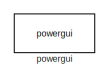
[diagram: root canvas - part 1/4, top left region]
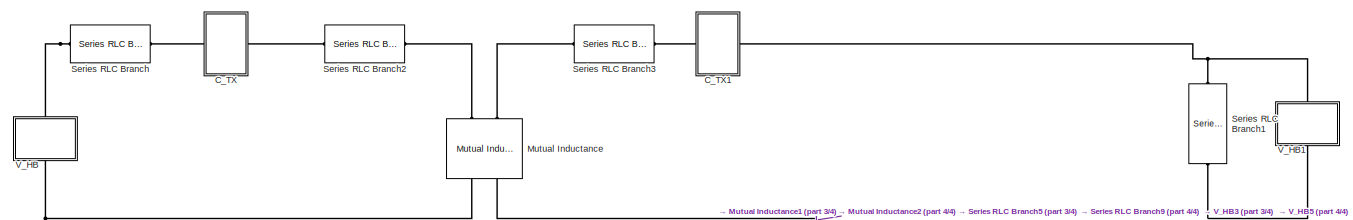
[diagram: root canvas - part 2/4, top center region]
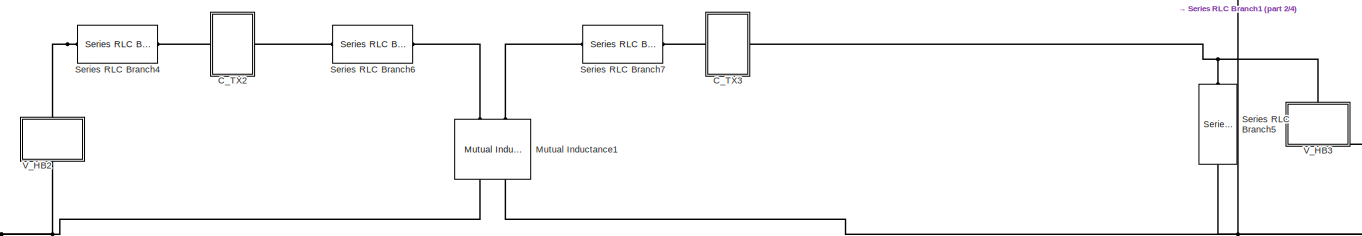
[diagram: root canvas - part 3/4, central region]
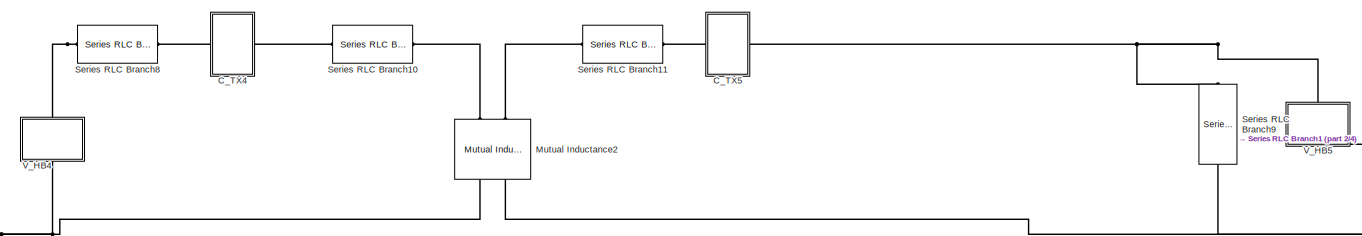
[diagram: root canvas - part 4/4, bottom center region]
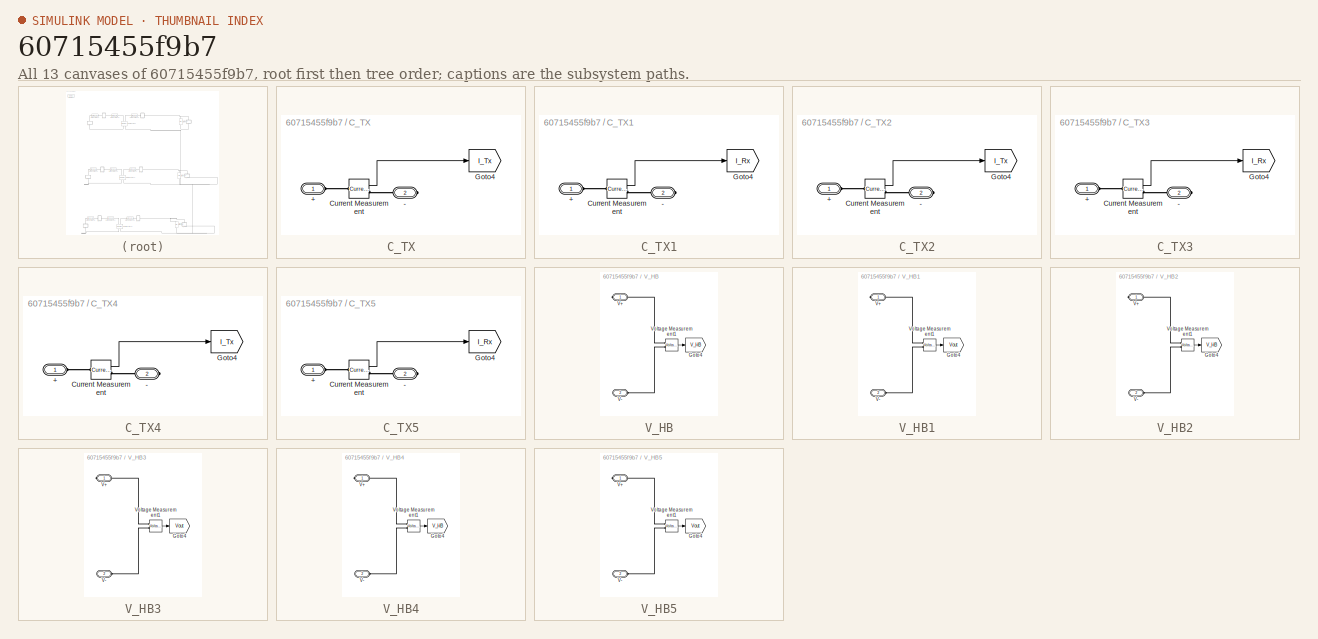
[diagram: thumbnail index - all 13 canvases of the model, root first then tree order]
MODEL slx_60715455f9b7
KIND model
CONFIG AbsTol = auto
CONFIG EnableMultiTasking = off
CONFIG FixedStep = sampleTime
CONFIG InitFcn = fs=160e3; %Hz\nstopTime=0.01;\nsampleTime=1e-8;\ndeadtime= round(((1/fs)/20)/sampleTime);\nVdc=100;\nLp=82e-6; \nCp=1/ (Lp*4*pi*pi*150e3*150e3);\nLs=66e-6;\nCs=1/ (Ls*4*pi*pi*150e3*150e3);\nRp=0.3;\nRs=0.2;\nRLOAD=20\nk=0.2;\nM=sqrt(Lp*Ls)*k;\nCout=1e-6; %F
CONFIG MaxStep = auto
CONFIG MinStep = auto
CONFIG RelTol = 1e-3
CONFIG SampleTimeConstraint = Unconstrained
CONFIG Solver = FixedStepDiscrete
CONFIG SolverName = FixedStepDiscrete
CONFIG StartTime = 0.0
CONFIG StopTime = stopTime
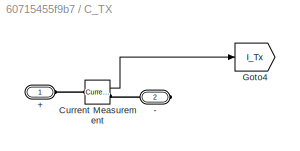
BLOCK [SubSystem] C_TX
  Ports = [0, 0, 0, 0, 0, 1, 1]
  RequestExecContextInheritance = off
BLOCK [PMIOPort] C_TX/+
  Side = Left
BLOCK [PMIOPort] C_TX/-
  Port = 2
  Side = Right
BLOCK [Reference] C_TX/Current Measurement  REF=powerlib/Measurements/Current Measurement
  Ports = [0, 1, 0, 0, 0, 1, 1]
  SourceBlock = powerlib/Measurements/Current Measurement
  SourceProductBaseCode = PS
  SourceProductName = Simscape Power Systems
  SourceType = Current Measurement
  UserDataPersistent = on
BLOCK [Goto] C_TX/Goto4
  GotoTag = I_Tx
  TagVisibility = global
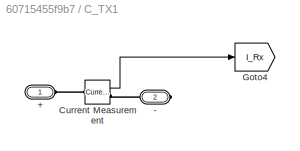
BLOCK [SubSystem] C_TX1
  Ports = [0, 0, 0, 0, 0, 1, 1]
  RequestExecContextInheritance = off
BLOCK [PMIOPort] C_TX1/+
  Side = Left
BLOCK [PMIOPort] C_TX1/-
  Port = 2
  Side = Right
BLOCK [Reference] C_TX1/Current Measurement  REF=powerlib/Measurements/Current Measurement
  Ports = [0, 1, 0, 0, 0, 1, 1]
  SourceBlock = powerlib/Measurements/Current Measurement
  SourceProductBaseCode = PS
  SourceProductName = Simscape Power Systems
  SourceType = Current Measurement
  UserDataPersistent = on
BLOCK [Goto] C_TX1/Goto4
  GotoTag = I_Rx
  TagVisibility = global
BLOCK [SubSystem] C_TX2
  Ports = [0, 0, 0, 0, 0, 1, 1]
  RequestExecContextInheritance = off
BLOCK [PMIOPort] C_TX2/+
  Side = Left
BLOCK [PMIOPort] C_TX2/-
  Port = 2
  Side = Right
BLOCK [Reference] C_TX2/Current Measurement  REF=powerlib/Measurements/Current Measurement
  Ports = [0, 1, 0, 0, 0, 1, 1]
  SourceBlock = powerlib/Measurements/Current Measurement
  SourceProductBaseCode = PS
  SourceProductName = Simscape Power Systems
  SourceType = Current Measurement
  UserDataPersistent = on
BLOCK [Goto] C_TX2/Goto4
  GotoTag = I_Tx
  TagVisibility = global
BLOCK [SubSystem] C_TX3
  Ports = [0, 0, 0, 0, 0, 1, 1]
  RequestExecContextInheritance = off
BLOCK [PMIOPort] C_TX3/+
  Side = Left
BLOCK [PMIOPort] C_TX3/-
  Port = 2
  Side = Right
BLOCK [Reference] C_TX3/Current Measurement  REF=powerlib/Measurements/Current Measurement
  Ports = [0, 1, 0, 0, 0, 1, 1]
  SourceBlock = powerlib/Measurements/Current Measurement
  SourceProductBaseCode = PS
  SourceProductName = Simscape Power Systems
  SourceType = Current Measurement
  UserDataPersistent = on
BLOCK [Goto] C_TX3/Goto4
  GotoTag = I_Rx
  TagVisibility = global
BLOCK [SubSystem] C_TX4
  Ports = [0, 0, 0, 0, 0, 1, 1]
  RequestExecContextInheritance = off
BLOCK [PMIOPort] C_TX4/+
  Side = Left
BLOCK [PMIOPort] C_TX4/-
  Port = 2
  Side = Right
BLOCK [Reference] C_TX4/Current Measurement  REF=powerlib/Measurements/Current Measurement
  Ports = [0, 1, 0, 0, 0, 1, 1]
  SourceBlock = powerlib/Measurements/Current Measurement
  SourceProductBaseCode = PS
  SourceProductName = Simscape Power Systems
  SourceType = Current Measurement
  UserDataPersistent = on
BLOCK [Goto] C_TX4/Goto4
  GotoTag = I_Tx
  TagVisibility = global
BLOCK [SubSystem] C_TX5
  Ports = [0, 0, 0, 0, 0, 1, 1]
  RequestExecContextInheritance = off
BLOCK [PMIOPort] C_TX5/+
  Side = Left
BLOCK [PMIOPort] C_TX5/-
  Port = 2
  Side = Right
BLOCK [Reference] C_TX5/Current Measurement  REF=powerlib/Measurements/Current Measurement
  Ports = [0, 1, 0, 0, 0, 1, 1]
  SourceBlock = powerlib/Measurements/Current Measurement
  SourceProductBaseCode = PS
  SourceProductName = Simscape Power Systems
  SourceType = Current Measurement
  UserDataPersistent = on
BLOCK [Goto] C_TX5/Goto4
  GotoTag = I_Rx
  TagVisibility = global
BLOCK [Reference] Mutual Inductance  REF=powerlib/Elements/Mutual Inductance
  AttributesFormatString = \n
  Ports = [0, 0, 0, 0, 0, 2, 2]
  SourceBlock = powerlib/Elements/Mutual Inductance
  SourceProductBaseCode = PS
  SourceProductName = Simscape Power Systems
  SourceType = Mutual Inductance
BLOCK [Reference] Mutual Inductance1  REF=powerlib/Elements/Mutual Inductance
  AttributesFormatString = \n
  Ports = [0, 0, 0, 0, 0, 2, 2]
  SourceBlock = powerlib/Elements/Mutual Inductance
  SourceProductBaseCode = PS
  SourceProductName = Simscape Power Systems
  SourceType = Mutual Inductance
BLOCK [Reference] Mutual Inductance2  REF=powerlib/Elements/Mutual Inductance
  AttributesFormatString = \n
  Ports = [0, 0, 0, 0, 0, 2, 2]
  SourceBlock = powerlib/Elements/Mutual Inductance
  SourceProductBaseCode = PS
  SourceProductName = Simscape Power Systems
  SourceType = Mutual Inductance
BLOCK [Reference] Series RLC Branch  REF=powerlib/Elements/Series RLC Branch
  Ports = [0, 0, 0, 0, 0, 1, 1]
  SourceBlock = powerlib/Elements/Series RLC Branch
  SourceProductBaseCode = PS
  SourceProductName = Simscape Power Systems
  SourceType = Series RLC Branch
BLOCK [Reference] Series RLC Branch1  REF=powerlib/Elements/Series RLC Branch
  Ports = [0, 0, 0, 0, 0, 1, 1]
  SourceBlock = powerlib/Elements/Series RLC Branch
  SourceProductBaseCode = PS
  SourceProductName = Simscape Power Systems
  SourceType = Series RLC Branch
BLOCK [Reference] Series RLC Branch10  REF=powerlib/Elements/Series RLC Branch
  Ports = [0, 0, 0, 0, 0, 1, 1]
  SourceBlock = powerlib/Elements/Series RLC Branch
  SourceProductBaseCode = PS
  SourceProductName = Simscape Power Systems
  SourceType = Series RLC Branch
BLOCK [Reference] Series RLC Branch11  REF=powerlib/Elements/Series RLC Branch
  Ports = [0, 0, 0, 0, 0, 1, 1]
  SourceBlock = powerlib/Elements/Series RLC Branch
  SourceProductBaseCode = PS
  SourceProductName = Simscape Power Systems
  SourceType = Series RLC Branch
BLOCK [Reference] Series RLC Branch2  REF=powerlib/Elements/Series RLC Branch
  Ports = [0, 0, 0, 0, 0, 1, 1]
  SourceBlock = powerlib/Elements/Series RLC Branch
  SourceProductBaseCode = PS
  SourceProductName = Simscape Power Systems
  SourceType = Series RLC Branch
BLOCK [Reference] Series RLC Branch3  REF=powerlib/Elements/Series RLC Branch
  Ports = [0, 0, 0, 0, 0, 1, 1]
  SourceBlock = powerlib/Elements/Series RLC Branch
  SourceProductBaseCode = PS
  SourceProductName = Simscape Power Systems
  SourceType = Series RLC Branch
BLOCK [Reference] Series RLC Branch4  REF=powerlib/Elements/Series RLC Branch
  Ports = [0, 0, 0, 0, 0, 1, 1]
  SourceBlock = powerlib/Elements/Series RLC Branch
  SourceProductBaseCode = PS
  SourceProductName = Simscape Power Systems
  SourceType = Series RLC Branch
BLOCK [Reference] Series RLC Branch5  REF=powerlib/Elements/Series RLC Branch
  Ports = [0, 0, 0, 0, 0, 1, 1]
  SourceBlock = powerlib/Elements/Series RLC Branch
  SourceProductBaseCode = PS
  SourceProductName = Simscape Power Systems
  SourceType = Series RLC Branch
BLOCK [Reference] Series RLC Branch6  REF=powerlib/Elements/Series RLC Branch
  Ports = [0, 0, 0, 0, 0, 1, 1]
  SourceBlock = powerlib/Elements/Series RLC Branch
  SourceProductBaseCode = PS
  SourceProductName = Simscape Power Systems
  SourceType = Series RLC Branch
BLOCK [Reference] Series RLC Branch7  REF=powerlib/Elements/Series RLC Branch
  Ports = [0, 0, 0, 0, 0, 1, 1]
  SourceBlock = powerlib/Elements/Series RLC Branch
  SourceProductBaseCode = PS
  SourceProductName = Simscape Power Systems
  SourceType = Series RLC Branch
BLOCK [Reference] Series RLC Branch8  REF=powerlib/Elements/Series RLC Branch
  Ports = [0, 0, 0, 0, 0, 1, 1]
  SourceBlock = powerlib/Elements/Series RLC Branch
  SourceProductBaseCode = PS
  SourceProductName = Simscape Power Systems
  SourceType = Series RLC Branch
BLOCK [Reference] Series RLC Branch9  REF=powerlib/Elements/Series RLC Branch
  Ports = [0, 0, 0, 0, 0, 1, 1]
  SourceBlock = powerlib/Elements/Series RLC Branch
  SourceProductBaseCode = PS
  SourceProductName = Simscape Power Systems
  SourceType = Series RLC Branch
BLOCK [SubSystem] V_HB
  Ports = [0, 0, 0, 0, 0, 1, 1]
  RequestExecContextInheritance = off
BLOCK [Goto] V_HB/Goto4
  GotoTag = V_HB
  TagVisibility = global
BLOCK [PMIOPort] V_HB/V+
  Side = Right
BLOCK [PMIOPort] V_HB/V-
  Port = 2
  Side = Left
BLOCK [Reference] V_HB/Voltage Measurement1  REF=powerlib/Measurements/Voltage Measurement
  Ports = [0, 1, 0, 0, 0, 2]
  SourceBlock = powerlib/Measurements/Voltage Measurement
  SourceProductBaseCode = PS
  SourceProductName = Simscape Power Systems
  SourceType = Voltage Measurement
  UserDataPersistent = on
BLOCK [SubSystem] V_HB1
  Ports = [0, 0, 0, 0, 0, 1, 1]
  RequestExecContextInheritance = off
BLOCK [Goto] V_HB1/Goto4
  GotoTag = Vout
  TagVisibility = global
BLOCK [PMIOPort] V_HB1/V+
  Side = Right
BLOCK [PMIOPort] V_HB1/V-
  Port = 2
  Side = Left
BLOCK [Reference] V_HB1/Voltage Measurement1  REF=powerlib/Measurements/Voltage Measurement
  Ports = [0, 1, 0, 0, 0, 2]
  SourceBlock = powerlib/Measurements/Voltage Measurement
  SourceProductBaseCode = PS
  SourceProductName = Simscape Power Systems
  SourceType = Voltage Measurement
  UserDataPersistent = on
BLOCK [SubSystem] V_HB2
  Ports = [0, 0, 0, 0, 0, 1, 1]
  RequestExecContextInheritance = off
BLOCK [Goto] V_HB2/Goto4
  GotoTag = V_HB
  TagVisibility = global
BLOCK [PMIOPort] V_HB2/V+
  Side = Right
BLOCK [PMIOPort] V_HB2/V-
  Port = 2
  Side = Left
BLOCK [Reference] V_HB2/Voltage Measurement1  REF=powerlib/Measurements/Voltage Measurement
  Ports = [0, 1, 0, 0, 0, 2]
  SourceBlock = powerlib/Measurements/Voltage Measurement
  SourceProductBaseCode = PS
  SourceProductName = Simscape Power Systems
  SourceType = Voltage Measurement
  UserDataPersistent = on
BLOCK [SubSystem] V_HB3
  Ports = [0, 0, 0, 0, 0, 1, 1]
  RequestExecContextInheritance = off
BLOCK [Goto] V_HB3/Goto4
  GotoTag = Vout
  TagVisibility = global
BLOCK [PMIOPort] V_HB3/V+
  Side = Right
BLOCK [PMIOPort] V_HB3/V-
  Port = 2
  Side = Left
BLOCK [Reference] V_HB3/Voltage Measurement1  REF=powerlib/Measurements/Voltage Measurement
  Ports = [0, 1, 0, 0, 0, 2]
  SourceBlock = powerlib/Measurements/Voltage Measurement
  SourceProductBaseCode = PS
  SourceProductName = Simscape Power Systems
  SourceType = Voltage Measurement
  UserDataPersistent = on
BLOCK [SubSystem] V_HB4
  Ports = [0, 0, 0, 0, 0, 1, 1]
  RequestExecContextInheritance = off
BLOCK [Goto] V_HB4/Goto4
  GotoTag = V_HB
  TagVisibility = global
BLOCK [PMIOPort] V_HB4/V+
  Side = Right
BLOCK [PMIOPort] V_HB4/V-
  Port = 2
  Side = Left
BLOCK [Reference] V_HB4/Voltage Measurement1  REF=powerlib/Measurements/Voltage Measurement
  Ports = [0, 1, 0, 0, 0, 2]
  SourceBlock = powerlib/Measurements/Voltage Measurement
  SourceProductBaseCode = PS
  SourceProductName = Simscape Power Systems
  SourceType = Voltage Measurement
  UserDataPersistent = on
BLOCK [SubSystem] V_HB5
  Ports = [0, 0, 0, 0, 0, 1, 1]
  RequestExecContextInheritance = off
BLOCK [Goto] V_HB5/Goto4
  GotoTag = Vout
  TagVisibility = global
BLOCK [PMIOPort] V_HB5/V+
  Side = Right
BLOCK [PMIOPort] V_HB5/V-
  Port = 2
  Side = Left
BLOCK [Reference] V_HB5/Voltage Measurement1  REF=powerlib/Measurements/Voltage Measurement
  Ports = [0, 1, 0, 0, 0, 2]
  SourceBlock = powerlib/Measurements/Voltage Measurement
  SourceProductBaseCode = PS
  SourceProductName = Simscape Power Systems
  SourceType = Voltage Measurement
  UserDataPersistent = on
BLOCK [Reference] powergui  REF=powerlib/powergui
  Ports = []
  Priority = 1
  SourceBlock = powerlib/powergui
  SourceProductBaseCode = PS
  SourceProductName = Simscape Power Systems
  SourceType = PSB option menu block
LINE C_TX/Current Measurement:1 -> C_TX/Goto4:1
LINE C_TX1/Current Measurement:1 -> C_TX1/Goto4:1
LINE C_TX2/Current Measurement:1 -> C_TX2/Goto4:1
LINE C_TX3/Current Measurement:1 -> C_TX3/Goto4:1
LINE C_TX4/Current Measurement:1 -> C_TX4/Goto4:1
LINE C_TX5/Current Measurement:1 -> C_TX5/Goto4:1
LINE V_HB/Voltage Measurement1:1 -> V_HB/Goto4:1
LINE V_HB1/Voltage Measurement1:1 -> V_HB1/Goto4:1
LINE V_HB2/Voltage Measurement1:1 -> V_HB2/Goto4:1
LINE V_HB3/Voltage Measurement1:1 -> V_HB3/Goto4:1
LINE V_HB4/Voltage Measurement1:1 -> V_HB4/Goto4:1
LINE V_HB5/Voltage Measurement1:1 -> V_HB5/Goto4:1
PLINE C_TX/+:RConn1 -- C_TX/Current Measurement:LConn1
PLINE C_TX/-:RConn1 -- C_TX/Current Measurement:RConn1
PLINE C_TX1/+:RConn1 -- C_TX1/Current Measurement:LConn1
PLINE C_TX1/-:RConn1 -- C_TX1/Current Measurement:RConn1
PLINE C_TX1:LConn1 -- Series RLC Branch3:RConn1
PNET net1: C_TX1:RConn1 -- Series RLC Branch1:LConn1 -- V_HB1:RConn1
PLINE C_TX2/+:RConn1 -- C_TX2/Current Measurement:LConn1
PLINE C_TX2/-:RConn1 -- C_TX2/Current Measurement:RConn1
PLINE C_TX2:LConn1 -- Series RLC Branch4:RConn1
PLINE C_TX2:RConn1 -- Series RLC Branch6:LConn1
PLINE C_TX3/+:RConn1 -- C_TX3/Current Measurement:LConn1
PLINE C_TX3/-:RConn1 -- C_TX3/Current Measurement:RConn1
PLINE C_TX3:LConn1 -- Series RLC Branch7:RConn1
PNET net2: C_TX3:RConn1 -- Series RLC Branch5:LConn1 -- V_HB3:RConn1
PLINE C_TX4/+:RConn1 -- C_TX4/Current Measurement:LConn1
PLINE C_TX4/-:RConn1 -- C_TX4/Current Measurement:RConn1
PLINE C_TX4:LConn1 -- Series RLC Branch8:RConn1
PLINE C_TX4:RConn1 -- Series RLC Branch10:LConn1
PLINE C_TX5/+:RConn1 -- C_TX5/Current Measurement:LConn1
PLINE C_TX5/-:RConn1 -- C_TX5/Current Measurement:RConn1
PLINE C_TX5:LConn1 -- Series RLC Branch11:RConn1
PNET net3: C_TX5:RConn1 -- Series RLC Branch9:LConn1 -- V_HB5:RConn1
PLINE C_TX:LConn1 -- Series RLC Branch:RConn1
PLINE C_TX:RConn1 -- Series RLC Branch2:LConn1
PLINE Mutual Inductance1:LConn1 -- Series RLC Branch6:RConn1
PLINE Mutual Inductance1:LConn2 -- Series RLC Branch7:LConn1
PLINE Mutual Inductance1:RConn1 -- V_HB2:LConn1
PNET net4: Mutual Inductance1:RConn2 -- Mutual Inductance2:RConn2 -- Mutual Inductance:RConn2 -- Series RLC Branch1:RConn1 -- Series RLC Branch5:RConn1 -- Series RLC Branch9:RConn1 -- V_HB1:LConn1 -- V_HB3:LConn1 -- V_HB5:LConn1
PLINE Mutual Inductance2:LConn1 -- Series RLC Branch10:RConn1
PLINE Mutual Inductance2:LConn2 -- Series RLC Branch11:LConn1
PLINE Mutual Inductance2:RConn1 -- V_HB4:LConn1
PLINE Mutual Inductance:LConn1 -- Series RLC Branch2:RConn1
PLINE Mutual Inductance:LConn2 -- Series RLC Branch3:LConn1
PLINE Mutual Inductance:RConn1 -- V_HB:LConn1
PLINE Series RLC Branch4:LConn1 -- V_HB2:RConn1
PLINE Series RLC Branch8:LConn1 -- V_HB4:RConn1
PLINE Series RLC Branch:LConn1 -- V_HB:RConn1
PLINE V_HB/V+:RConn1 -- V_HB/Voltage Measurement1:LConn1
PLINE V_HB/V-:RConn1 -- V_HB/Voltage Measurement1:LConn2
PLINE V_HB1/V+:RConn1 -- V_HB1/Voltage Measurement1:LConn1
PLINE V_HB1/V-:RConn1 -- V_HB1/Voltage Measurement1:LConn2
PLINE V_HB2/V+:RConn1 -- V_HB2/Voltage Measurement1:LConn1
PLINE V_HB2/V-:RConn1 -- V_HB2/Voltage Measurement1:LConn2
PLINE V_HB3/V+:RConn1 -- V_HB3/Voltage Measurement1:LConn1
PLINE V_HB3/V-:RConn1 -- V_HB3/Voltage Measurement1:LConn2
PLINE V_HB4/V+:RConn1 -- V_HB4/Voltage Measurement1:LConn1
PLINE V_HB4/V-:RConn1 -- V_HB4/Voltage Measurement1:LConn2
PLINE V_HB5/V+:RConn1 -- V_HB5/Voltage Measurement1:LConn1
PLINE V_HB5/V-:RConn1 -- V_HB5/Voltage Measurement1:LConn2
note: PNET lines group multi-terminal physical nets as a canonical sorted terminal list (undirected conserving connections); 2-terminal nets keep the pairwise PLINE form
